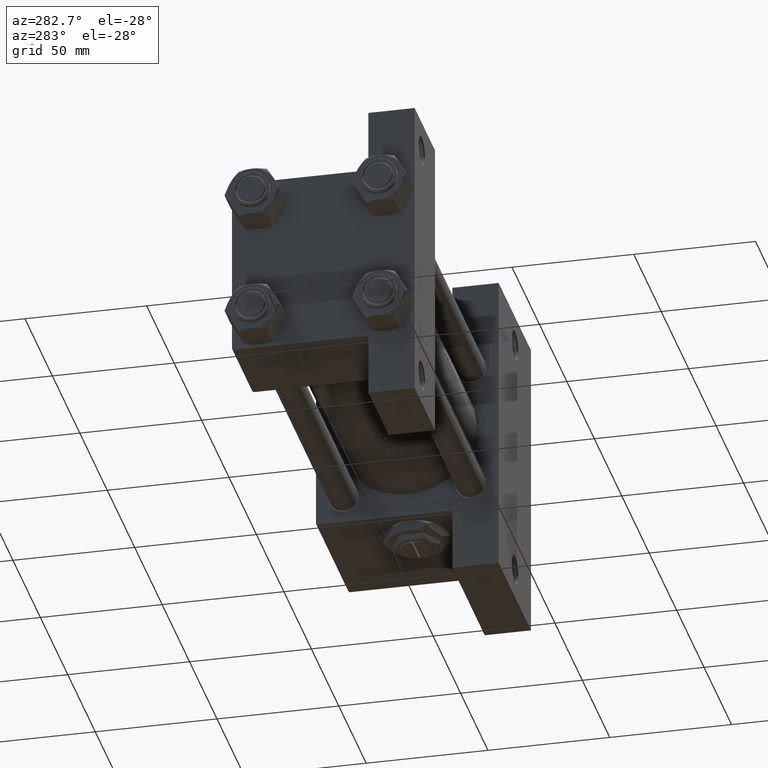
[diagram: clean part render]
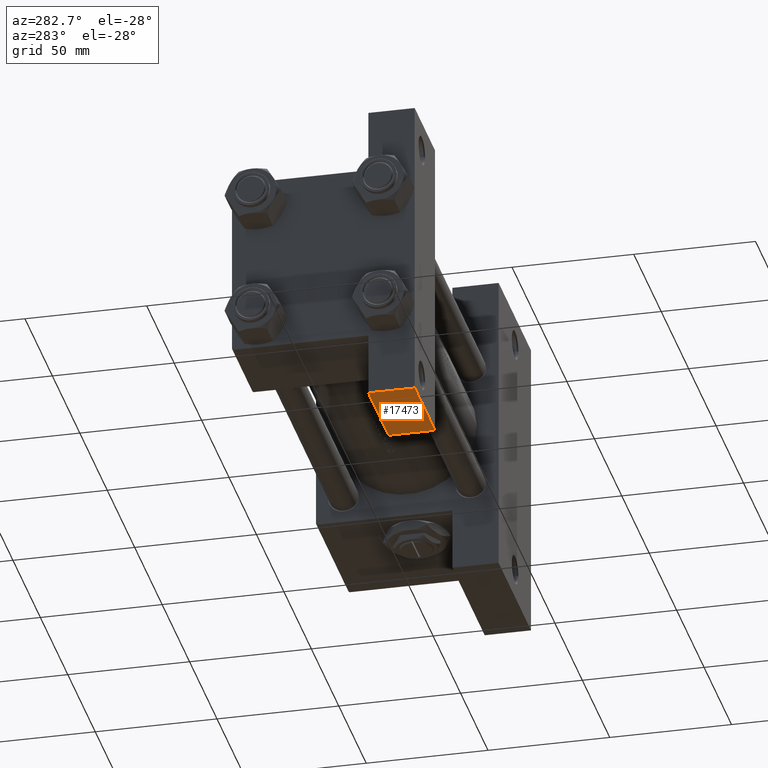
[diagram: same view with one face highlighted and labeled with its STEP entity id]
A machine part, auxiliary view. The second image highlights one B-rep face of the part: STEP entity #17473.
In plain terms, the highlighted planar face has unit normal (0, -0, -1).
Its self-contained STEP definition (entity closure, byte-faithful):
#1134 = ORIENTED_EDGE ( 'NONE', *, *, #15993, .F. ) ;
#1591 = VECTOR ( 'NONE', #45015, 1000.000000000000000 ) ;
#2401 = CARTESIAN_POINT ( 'NONE',  ( 1.595073532467135441E-14, 63.50000000000000000, -37.50000000000002132 ) ) ;
#6421 = EDGE_CURVE ( 'NONE', #10135, #7545, #33552, .T. ) ;
#7293 = VECTOR ( 'NONE', #41929, 1000.000000000000000 ) ;
#7545 = VERTEX_POINT ( 'NONE', #27301 ) ;
#7645 = EDGE_CURVE ( 'NONE', #7545, #20798, #7771, .T. ) ;
#7771 = LINE ( 'NONE', #2401, #18271 ) ;
#8939 = ORIENTED_EDGE ( 'NONE', *, *, #18044, .T. ) ;
#10135 = VERTEX_POINT ( 'NONE', #16368 ) ;
#11181 = DIRECTION ( 'NONE',  ( 0.000000000000000000, 1.000000000000000000, -1.734723475976806848E-16 ) ) ;
#14175 = DIRECTION ( 'NONE',  ( 0.000000000000000000, 1.734723475976806848E-16, 1.000000000000000000 ) ) ;
#14343 = EDGE_LOOP ( 'NONE', ( #1134, #8939, #31477, #20600 ) ) ;
#14423 = PLANE ( 'NONE',  #15281 ) ;
#15281 = AXIS2_PLACEMENT_3D ( 'NONE', #36609, #11181, #14175 ) ;
#15993 = EDGE_CURVE ( 'NONE', #35466, #10135, #35185, .T. ) ;
#16368 = CARTESIAN_POINT ( 'NONE',  ( 1.595073532467135441E-14, 63.50000000000000000, -18.50000000000000355 ) ) ;
#17473 = ADVANCED_FACE ( 'NONE', ( #41582 ), #14423, .T. ) ;
#18044 = EDGE_CURVE ( 'NONE', #35466, #20798, #39181, .T. ) ;
#18271 = VECTOR ( 'NONE', #47980, 1000.000000000000000 ) ;
#20600 = ORIENTED_EDGE ( 'NONE', *, *, #6421, .F. ) ;
#20798 = VERTEX_POINT ( 'NONE', #32757 ) ;
#23471 = CARTESIAN_POINT ( 'NONE',  ( 37.00000000000001421, 63.50000000000000000, -18.50000000000000355 ) ) ;
#24866 = VECTOR ( 'NONE', #45965, 1000.000000000000000 ) ;
#27301 = CARTESIAN_POINT ( 'NONE',  ( 1.595073532467135441E-14, 63.50000000000000000, -37.50000000000002132 ) ) ;
#27689 = CARTESIAN_POINT ( 'NONE',  ( 1.595073532467135441E-14, 63.50000000000000000, -18.50000000000000355 ) ) ;
#31477 = ORIENTED_EDGE ( 'NONE', *, *, #7645, .F. ) ;
#32757 = CARTESIAN_POINT ( 'NONE',  ( 37.00000000000001421, 63.50000000000000000, -37.50000000000002132 ) ) ;
#33552 = LINE ( 'NONE', #36780, #1591 ) ;
#35185 = LINE ( 'NONE', #27689, #7293 ) ;
#35459 = CARTESIAN_POINT ( 'NONE',  ( 37.00000000000001421, 63.50000000000001421, 26.72167621838005047 ) ) ;
#35466 = VERTEX_POINT ( 'NONE', #23471 ) ;
#36609 = CARTESIAN_POINT ( 'NONE',  ( 1.595073532467135441E-14, 63.50000000000001421, 26.72167621838005047 ) ) ;
#36780 = CARTESIAN_POINT ( 'NONE',  ( 1.595073532467135441E-14, 63.50000000000001421, 26.72167621838005047 ) ) ;
#39181 = LINE ( 'NONE', #35459, #24866 ) ;
#41582 = FACE_OUTER_BOUND ( 'NONE', #14343, .T. ) ;
#41929 = DIRECTION ( 'NONE',  ( -1.000000000000000000, 0.000000000000000000, 0.000000000000000000 ) ) ;
#45015 = DIRECTION ( 'NONE',  ( 0.000000000000000000, -1.734723475976806848E-16, -1.000000000000000000 ) ) ;
#45965 = DIRECTION ( 'NONE',  ( 0.000000000000000000, -1.734723475976806848E-16, -1.000000000000000000 ) ) ;
#47980 = DIRECTION ( 'NONE',  ( 1.000000000000000000, 0.000000000000000000, 0.000000000000000000 ) ) ;